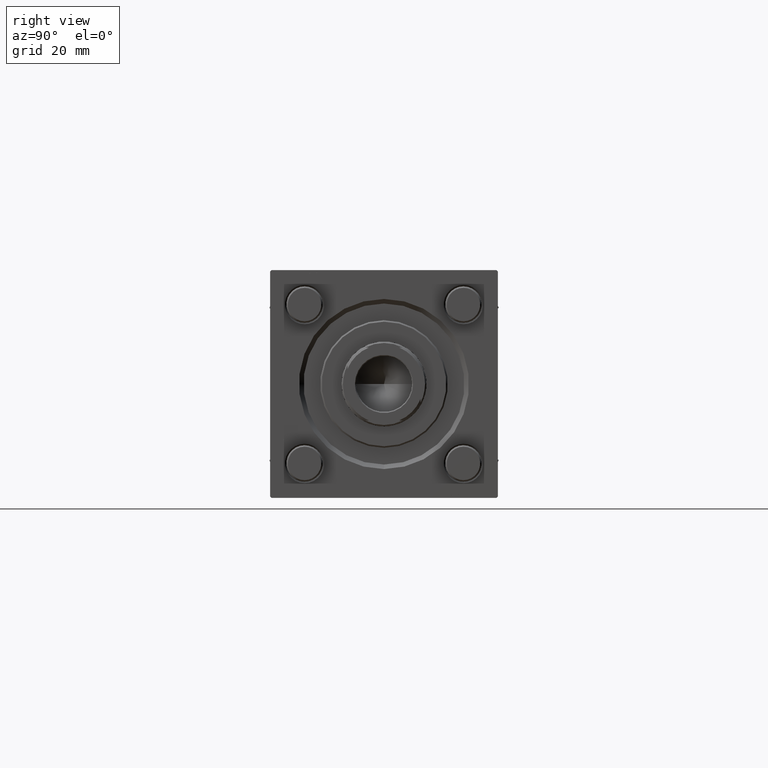
[diagram: clean part render]
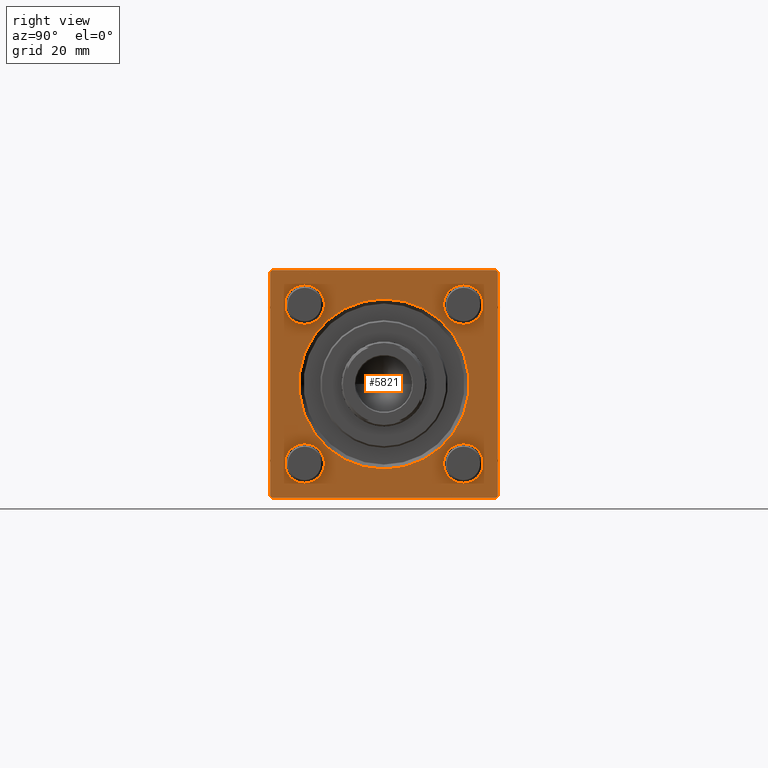
[diagram: same view with one face highlighted and labeled with its STEP entity id]
A machine part, right view. The second image highlights one B-rep face of the part: STEP entity #5821.
In plain terms, the highlighted planar face has unit normal (-1, 0, 0).
Its self-contained STEP definition (entity closure, byte-faithful):
#361 = EDGE_CURVE ( 'NONE', #25703, #39627, #54257, .T. ) ;
#454 = EDGE_CURVE ( 'NONE', #14877, #17042, #46025, .T. ) ;
#527 = DIRECTION ( 'NONE',  ( -1.000000000000000000, -0.000000000000000000, 0.000000000000000000 ) ) ;
#2374 = ORIENTED_EDGE ( 'NONE', *, *, #3211, .T. ) ;
#2444 = DIRECTION ( 'NONE',  ( 0.000000000000000000, 0.000000000000000000, 1.000000000000000000 ) ) ;
#3018 = AXIS2_PLACEMENT_3D ( 'NONE', #18754, #5000, #23039 ) ;
#3211 = EDGE_CURVE ( 'NONE', #35556, #42862, #38006, .T. ) ;
#3216 = AXIS2_PLACEMENT_3D ( 'NONE', #5948, #527, #31179 ) ;
#3621 = DIRECTION ( 'NONE',  ( 0.000000000000000000, 0.000000000000000000, -1.000000000000000000 ) ) ;
#3909 = DIRECTION ( 'NONE',  ( 0.000000000000000000, -1.000000000000000000, -1.850371707708594316E-16 ) ) ;
#4343 = DIRECTION ( 'NONE',  ( -1.000000000000000000, -0.000000000000000000, 0.000000000000000000 ) ) ;
#4424 = ORIENTED_EDGE ( 'NONE', *, *, #53518, .T. ) ;
#4788 = ORIENTED_EDGE ( 'NONE', *, *, #19856, .T. ) ;
#5000 = DIRECTION ( 'NONE',  ( -1.000000000000000000, -0.000000000000000000, 0.000000000000000000 ) ) ;
#5821 = ADVANCED_FACE ( 'NONE', ( #34253, #12459, #47456, #9000, #39116, #26204 ), #12736, .F. ) ;
#5948 = CARTESIAN_POINT ( 'NONE',  ( 154.0000000000000000, 26.14999999999999858, 26.15000000000000213 ) ) ;
#5995 = AXIS2_PLACEMENT_3D ( 'NONE', #13596, #21622, #8442 ) ;
#6079 = CARTESIAN_POINT ( 'NONE',  ( 154.0000000000000000, 37.50000000000000000, -36.99999999999999289 ) ) ;
#6653 = CARTESIAN_POINT ( 'NONE',  ( 154.0000000000000000, 3.429011037612588881E-15, 27.99999999999999645 ) ) ;
#7633 = CARTESIAN_POINT ( 'NONE',  ( 154.0000000000000000, 37.50000000000000000, 37.49999999999999289 ) ) ;
#7795 = EDGE_CURVE ( 'NONE', #32849, #20574, #36328, .T. ) ;
#8062 = CARTESIAN_POINT ( 'NONE',  ( 154.0000000000000000, -37.50000000000000711, -37.00000000000000711 ) ) ;
#8442 = DIRECTION ( 'NONE',  ( 0.000000000000000000, 0.000000000000000000, 1.000000000000000000 ) ) ;
#8565 = EDGE_LOOP ( 'NONE', ( #11824, #32824 ) ) ;
#8888 = VECTOR ( 'NONE', #27749, 1000.000000000000000 ) ;
#9000 = FACE_BOUND ( 'NONE', #17675, .T. ) ;
#9098 = CARTESIAN_POINT ( 'NONE',  ( 154.0000000000000000, -37.50000000000000000, 37.49999999999997868 ) ) ;
#9315 = DIRECTION ( 'NONE',  ( 0.000000000000000000, 0.000000000000000000, 1.000000000000000000 ) ) ;
#9428 = EDGE_CURVE ( 'NONE', #19049, #41868, #43623, .T. ) ;
#10064 = EDGE_LOOP ( 'NONE', ( #24077, #36323 ) ) ;
#10189 = DIRECTION ( 'NONE',  ( -1.000000000000000000, -0.000000000000000000, 0.000000000000000000 ) ) ;
#10196 = CARTESIAN_POINT ( 'NONE',  ( 154.0000000000000000, -36.99999999999998579, -37.50000000000000000 ) ) ;
#10412 = CIRCLE ( 'NONE', #56185, 6.500000000000002665 ) ;
#10696 = DIRECTION ( 'NONE',  ( 0.000000000000000000, -0.7071067811865474617, 0.7071067811865474617 ) ) ;
#11471 = VERTEX_POINT ( 'NONE', #36447 ) ;
#11824 = ORIENTED_EDGE ( 'NONE', *, *, #454, .T. ) ;
#11931 = LINE ( 'NONE', #7633, #33975 ) ;
#12459 = FACE_BOUND ( 'NONE', #8565, .T. ) ;
#12503 = VERTEX_POINT ( 'NONE', #35384 ) ;
#12718 = CARTESIAN_POINT ( 'NONE',  ( 154.0000000000000000, 26.14999999999999858, -19.65000000000000213 ) ) ;
#12736 = PLANE ( 'NONE',  #5995 ) ;
#12952 = ORIENTED_EDGE ( 'NONE', *, *, #33639, .T. ) ;
#13356 = CARTESIAN_POINT ( 'NONE',  ( 154.0000000000000000, 37.50000000000000000, 37.49999999999999289 ) ) ;
#13519 = CARTESIAN_POINT ( 'NONE',  ( 154.0000000000000000, -26.14999999999999147, -26.15000000000000924 ) ) ;
#13596 = CARTESIAN_POINT ( 'NONE',  ( 154.0000000000000000, 0.000000000000000000, 0.000000000000000000 ) ) ;
#14506 = LINE ( 'NONE', #10196, #40417 ) ;
#14542 = CARTESIAN_POINT ( 'NONE',  ( 154.0000000000000000, 37.50000000000000000, 36.99999999999999289 ) ) ;
#14582 = CARTESIAN_POINT ( 'NONE',  ( 154.0000000000000000, -26.14999999999999147, 32.65000000000001990 ) ) ;
#14877 = VERTEX_POINT ( 'NONE', #49885 ) ;
#15172 = DIRECTION ( 'NONE',  ( -1.000000000000000000, -0.000000000000000000, 0.000000000000000000 ) ) ;
#16816 = LINE ( 'NONE', #13356, #52343 ) ;
#17008 = ORIENTED_EDGE ( 'NONE', *, *, #7795, .T. ) ;
#17042 = VERTEX_POINT ( 'NONE', #12718 ) ;
#17225 = CARTESIAN_POINT ( 'NONE',  ( 154.0000000000000000, 26.14999999999999858, 26.15000000000000213 ) ) ;
#17527 = CARTESIAN_POINT ( 'NONE',  ( 154.0000000000000000, 37.50000000000000000, -37.50000000000000000 ) ) ;
#17554 = CIRCLE ( 'NONE', #19355, 6.500000000000002665 ) ;
#17675 = EDGE_LOOP ( 'NONE', ( #29490, #4424 ) ) ;
#17799 = DIRECTION ( 'NONE',  ( 0.000000000000000000, 0.000000000000000000, 1.000000000000000000 ) ) ;
#17893 = VERTEX_POINT ( 'NONE', #6653 ) ;
#18754 = CARTESIAN_POINT ( 'NONE',  ( 154.0000000000000000, -26.14999999999999147, -26.15000000000000924 ) ) ;
#19049 = VERTEX_POINT ( 'NONE', #55049 ) ;
#19065 = DIRECTION ( 'NONE',  ( -1.000000000000000000, -0.000000000000000000, 0.000000000000000000 ) ) ;
#19355 = AXIS2_PLACEMENT_3D ( 'NONE', #17225, #39870, #17799 ) ;
#19439 = ORIENTED_EDGE ( 'NONE', *, *, #26152, .F. ) ;
#19692 = EDGE_CURVE ( 'NONE', #12503, #17893, #43802, .T. ) ;
#19856 = EDGE_CURVE ( 'NONE', #56327, #39688, #54577, .T. ) ;
#20420 = ORIENTED_EDGE ( 'NONE', *, *, #19692, .T. ) ;
#20574 = VERTEX_POINT ( 'NONE', #8062 ) ;
#21014 = CIRCLE ( 'NONE', #38415, 6.500000000000002665 ) ;
#21270 = EDGE_LOOP ( 'NONE', ( #20420, #22136 ) ) ;
#21583 = CARTESIAN_POINT ( 'NONE',  ( 154.0000000000000000, -26.14999999999999147, 19.65000000000000568 ) ) ;
#21622 = DIRECTION ( 'NONE',  ( -1.000000000000000000, -0.000000000000000000, 0.000000000000000000 ) ) ;
#22136 = ORIENTED_EDGE ( 'NONE', *, *, #45131, .T. ) ;
#22976 = AXIS2_PLACEMENT_3D ( 'NONE', #27395, #10189, #2444 ) ;
#23039 = DIRECTION ( 'NONE',  ( 0.000000000000000000, 0.000000000000000000, 1.000000000000000000 ) ) ;
#23559 = DIRECTION ( 'NONE',  ( -0.000000000000000000, 0.7071067811865425767, 0.7071067811865525687 ) ) ;
#23647 = AXIS2_PLACEMENT_3D ( 'NONE', #33686, #51182, #46600 ) ;
#24077 = ORIENTED_EDGE ( 'NONE', *, *, #51019, .T. ) ;
#24146 = ORIENTED_EDGE ( 'NONE', *, *, #9428, .F. ) ;
#24357 = EDGE_CURVE ( 'NONE', #30356, #32849, #44091, .T. ) ;
#25402 = ORIENTED_EDGE ( 'NONE', *, *, #28207, .T. ) ;
#25703 = VERTEX_POINT ( 'NONE', #21583 ) ;
#26152 = EDGE_CURVE ( 'NONE', #56327, #29252, #11931, .T. ) ;
#26204 = FACE_OUTER_BOUND ( 'NONE', #30608, .T. ) ;
#26299 = DIRECTION ( 'NONE',  ( -0.000000000000000000, -0.7071067811865474617, -0.7071067811865474617 ) ) ;
#27135 = VECTOR ( 'NONE', #48685, 1000.000000000000000 ) ;
#27395 = CARTESIAN_POINT ( 'NONE',  ( 154.0000000000000000, 0.000000000000000000, 0.000000000000000000 ) ) ;
#27749 = DIRECTION ( 'NONE',  ( 0.000000000000000000, -1.000000000000000000, 0.000000000000000000 ) ) ;
#28070 = CARTESIAN_POINT ( 'NONE',  ( 154.0000000000000000, -26.14999999999999147, 26.15000000000000924 ) ) ;
#28207 = EDGE_CURVE ( 'NONE', #20574, #41868, #14506, .T. ) ;
#28411 = CARTESIAN_POINT ( 'NONE',  ( 154.0000000000000000, -37.50000000000000000, 36.99999999999995026 ) ) ;
#28763 = CARTESIAN_POINT ( 'NONE',  ( 154.0000000000000000, 37.50000000000000000, -36.99999999999999289 ) ) ;
#29252 = VERTEX_POINT ( 'NONE', #28763 ) ;
#29490 = ORIENTED_EDGE ( 'NONE', *, *, #361, .T. ) ;
#29540 = VECTOR ( 'NONE', #23559, 999.9999999999998863 ) ;
#29977 = EDGE_CURVE ( 'NONE', #17042, #14877, #39412, .T. ) ;
#30356 = VERTEX_POINT ( 'NONE', #34690 ) ;
#30608 = EDGE_LOOP ( 'NONE', ( #17008, #25402, #24146, #35819, #19439, #4788, #45287, #38145 ) ) ;
#31179 = DIRECTION ( 'NONE',  ( 0.000000000000000000, 0.000000000000000000, 1.000000000000000000 ) ) ;
#31353 = AXIS2_PLACEMENT_3D ( 'NONE', #41188, #42326, #54946 ) ;
#32076 = AXIS2_PLACEMENT_3D ( 'NONE', #41401, #37106, #33642 ) ;
#32824 = ORIENTED_EDGE ( 'NONE', *, *, #29977, .T. ) ;
#32849 = VERTEX_POINT ( 'NONE', #28411 ) ;
#33484 = CARTESIAN_POINT ( 'NONE',  ( 154.0000000000000000, 26.14999999999999858, 19.64999999999999858 ) ) ;
#33639 = EDGE_CURVE ( 'NONE', #42862, #35556, #17554, .T. ) ;
#33642 = DIRECTION ( 'NONE',  ( 0.000000000000000000, 0.000000000000000000, 1.000000000000000000 ) ) ;
#33686 = CARTESIAN_POINT ( 'NONE',  ( 154.0000000000000000, 0.000000000000000000, 0.000000000000000000 ) ) ;
#33958 = CIRCLE ( 'NONE', #22976, 27.99999999999999645 ) ;
#33975 = VECTOR ( 'NONE', #3621, 1000.000000000000000 ) ;
#34253 = FACE_BOUND ( 'NONE', #10064, .T. ) ;
#34690 = CARTESIAN_POINT ( 'NONE',  ( 154.0000000000000000, -36.99999999999997158, 37.49999999999997868 ) ) ;
#34860 = EDGE_LOOP ( 'NONE', ( #2374, #12952 ) ) ;
#35384 = CARTESIAN_POINT ( 'NONE',  ( 154.0000000000000000, 0.000000000000000000, -27.99999999999999645 ) ) ;
#35452 = CARTESIAN_POINT ( 'NONE',  ( 154.0000000000000000, 37.00000000000000000, 37.49999999999999289 ) ) ;
#35556 = VERTEX_POINT ( 'NONE', #33484 ) ;
#35819 = ORIENTED_EDGE ( 'NONE', *, *, #37044, .T. ) ;
#36232 = CARTESIAN_POINT ( 'NONE',  ( 154.0000000000000000, 37.00000000000000000, 37.49999999999999289 ) ) ;
#36323 = ORIENTED_EDGE ( 'NONE', *, *, #41472, .T. ) ;
#36328 = LINE ( 'NONE', #9098, #27135 ) ;
#36447 = CARTESIAN_POINT ( 'NONE',  ( 154.0000000000000000, -26.14999999999999147, -19.65000000000000924 ) ) ;
#37044 = EDGE_CURVE ( 'NONE', #19049, #29252, #49670, .T. ) ;
#37106 = DIRECTION ( 'NONE',  ( -1.000000000000000000, -0.000000000000000000, 0.000000000000000000 ) ) ;
#38006 = CIRCLE ( 'NONE', #3216, 6.500000000000002665 ) ;
#38102 = CARTESIAN_POINT ( 'NONE',  ( 154.0000000000000000, -26.14999999999999147, -32.65000000000001279 ) ) ;
#38145 = ORIENTED_EDGE ( 'NONE', *, *, #24357, .T. ) ;
#38415 = AXIS2_PLACEMENT_3D ( 'NONE', #13519, #4343, #47651 ) ;
#39114 = CARTESIAN_POINT ( 'NONE',  ( 154.0000000000000000, -36.99999999999998579, -37.50000000000000000 ) ) ;
#39116 = FACE_BOUND ( 'NONE', #21270, .T. ) ;
#39412 = CIRCLE ( 'NONE', #32076, 6.500000000000002665 ) ;
#39627 = VERTEX_POINT ( 'NONE', #14582 ) ;
#39688 = VERTEX_POINT ( 'NONE', #35452 ) ;
#39870 = DIRECTION ( 'NONE',  ( -1.000000000000000000, -0.000000000000000000, 0.000000000000000000 ) ) ;
#40417 = VECTOR ( 'NONE', #52951, 1000.000000000000000 ) ;
#41188 = CARTESIAN_POINT ( 'NONE',  ( 154.0000000000000000, -26.14999999999999147, 26.15000000000000924 ) ) ;
#41263 = DIRECTION ( 'NONE',  ( 0.000000000000000000, 0.000000000000000000, 1.000000000000000000 ) ) ;
#41401 = CARTESIAN_POINT ( 'NONE',  ( 154.0000000000000000, 26.14999999999999858, -26.15000000000000213 ) ) ;
#41472 = EDGE_CURVE ( 'NONE', #11471, #46134, #21014, .T. ) ;
#41868 = VERTEX_POINT ( 'NONE', #39114 ) ;
#42326 = DIRECTION ( 'NONE',  ( -1.000000000000000000, -0.000000000000000000, 0.000000000000000000 ) ) ;
#42862 = VERTEX_POINT ( 'NONE', #52678 ) ;
#43623 = LINE ( 'NONE', #17527, #8888 ) ;
#43802 = CIRCLE ( 'NONE', #23647, 27.99999999999999645 ) ;
#44091 = LINE ( 'NONE', #53546, #47608 ) ;
#45131 = EDGE_CURVE ( 'NONE', #17893, #12503, #33958, .T. ) ;
#45287 = ORIENTED_EDGE ( 'NONE', *, *, #46631, .T. ) ;
#46025 = CIRCLE ( 'NONE', #53363, 6.500000000000002665 ) ;
#46134 = VERTEX_POINT ( 'NONE', #38102 ) ;
#46600 = DIRECTION ( 'NONE',  ( 0.000000000000000000, 0.000000000000000000, 1.000000000000000000 ) ) ;
#46631 = EDGE_CURVE ( 'NONE', #39688, #30356, #16816, .T. ) ;
#47456 = FACE_BOUND ( 'NONE', #34860, .T. ) ;
#47608 = VECTOR ( 'NONE', #26299, 1000.000000000000114 ) ;
#47651 = DIRECTION ( 'NONE',  ( 0.000000000000000000, 0.000000000000000000, 1.000000000000000000 ) ) ;
#48390 = VECTOR ( 'NONE', #10696, 1000.000000000000114 ) ;
#48685 = DIRECTION ( 'NONE',  ( 0.000000000000000000, -9.251858538542972814E-17, -1.000000000000000000 ) ) ;
#49670 = LINE ( 'NONE', #6079, #29540 ) ;
#49885 = CARTESIAN_POINT ( 'NONE',  ( 154.0000000000000000, 26.14999999999999858, -32.65000000000000568 ) ) ;
#51019 = EDGE_CURVE ( 'NONE', #46134, #11471, #53375, .T. ) ;
#51182 = DIRECTION ( 'NONE',  ( -1.000000000000000000, -0.000000000000000000, 0.000000000000000000 ) ) ;
#52343 = VECTOR ( 'NONE', #3909, 1000.000000000000000 ) ;
#52678 = CARTESIAN_POINT ( 'NONE',  ( 154.0000000000000000, 26.14999999999999858, 32.65000000000001279 ) ) ;
#52914 = CARTESIAN_POINT ( 'NONE',  ( 154.0000000000000000, 26.14999999999999858, -26.15000000000000213 ) ) ;
#52951 = DIRECTION ( 'NONE',  ( 0.000000000000000000, 0.7071067811865671127, -0.7071067811865279218 ) ) ;
#53363 = AXIS2_PLACEMENT_3D ( 'NONE', #52914, #19065, #9315 ) ;
#53375 = CIRCLE ( 'NONE', #3018, 6.500000000000002665 ) ;
#53518 = EDGE_CURVE ( 'NONE', #39627, #25703, #10412, .T. ) ;
#53546 = CARTESIAN_POINT ( 'NONE',  ( 154.0000000000000000, -37.50000000000000000, 36.99999999999995026 ) ) ;
#54257 = CIRCLE ( 'NONE', #31353, 6.500000000000002665 ) ;
#54577 = LINE ( 'NONE', #36232, #48390 ) ;
#54946 = DIRECTION ( 'NONE',  ( 0.000000000000000000, 0.000000000000000000, 1.000000000000000000 ) ) ;
#55049 = CARTESIAN_POINT ( 'NONE',  ( 154.0000000000000000, 37.00000000000000000, -37.50000000000000000 ) ) ;
#56185 = AXIS2_PLACEMENT_3D ( 'NONE', #28070, #15172, #41263 ) ;
#56327 = VERTEX_POINT ( 'NONE', #14542 ) ;